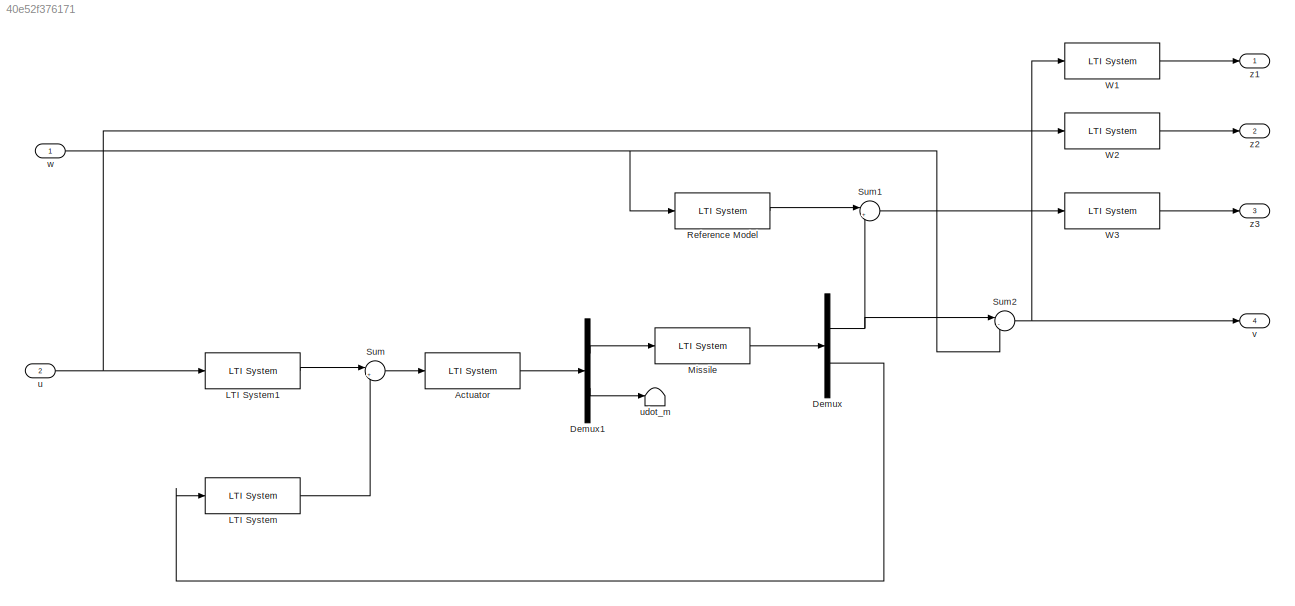
MODEL slx_40e52f376171
KIND model
CONFIG AbsTol = auto
CONFIG EnableMultiTasking = off
CONFIG FixedStep = auto
CONFIG MaxStep = auto
CONFIG MinStep = auto
CONFIG RelTol = 1e-3
CONFIG SampleTimeConstraint = Unconstrained
CONFIG SolverName = VariableStepAuto
CONFIG StartTime = 0.0
CONFIG StopTime = 10.0
BLOCK [Reference] Actuator  REF=cstblocks/LTI System
  SourceBlock = cstblocks/LTI System
  SourceType = LTI Block
BLOCK [Demux] Demux
  Outputs = 2
BLOCK [Demux] Demux1
  Outputs = 2
BLOCK [Reference] LTI System  REF=cstblocks/LTI System
  SourceBlock = cstblocks/LTI System
  SourceType = LTI Block
BLOCK [Reference] LTI System1  REF=cstblocks/LTI System
  SourceBlock = cstblocks/LTI System
  SourceType = LTI Block
BLOCK [Reference] Missile  REF=cstblocks/LTI System
  SourceBlock = cstblocks/LTI System
  SourceType = LTI Block
BLOCK [Reference] Reference Model  REF=cstblocks/LTI System
  SourceBlock = cstblocks/LTI System
  SourceType = LTI Block
BLOCK [Sum] Sum
  Inputs = |+-
BLOCK [Sum] Sum1
  Inputs = |+-
BLOCK [Sum] Sum2
  Inputs = |-+
BLOCK [Reference] W1  REF=cstblocks/LTI System
  SourceBlock = cstblocks/LTI System
  SourceType = LTI Block
BLOCK [Reference] W2  REF=cstblocks/LTI System
  SourceBlock = cstblocks/LTI System
  SourceType = LTI Block
BLOCK [Reference] W3  REF=cstblocks/LTI System
  SourceBlock = cstblocks/LTI System
  SourceType = LTI Block
BLOCK [Inport] u
  Port = 2
BLOCK [Terminator] udot_m
BLOCK [Outport] v
  Port = 4
BLOCK [Inport] w
BLOCK [Outport] z1
BLOCK [Outport] z2
  Port = 2
BLOCK [Outport] z3
  Port = 3
LINE Actuator:1 -> Demux1:1
LINE Demux1:1 -> Missile:1
LINE Demux1:2 -> udot_m:1
NET Demux:1 -> Sum1:2, Sum2:1
LINE Demux:2 -> LTI System:1
LINE LTI System1:1 -> Sum:1
LINE LTI System:1 -> Sum:2
LINE Missile:1 -> Demux:1
LINE Reference Model:1 -> Sum1:1
LINE Sum1:1 -> W3:1
NET Sum2:1 -> W1:1, v:1
LINE Sum:1 -> Actuator:1
LINE W1:1 -> z1:1
LINE W2:1 -> z2:1
LINE W3:1 -> z3:1
NET u:1 -> LTI System1:1, W2:1
NET w:1 -> Reference Model:1, Sum2:2
note: NET lines group one-source signal fan-out (src -> all destinations, sorted); 1:1 wires keep LINE
